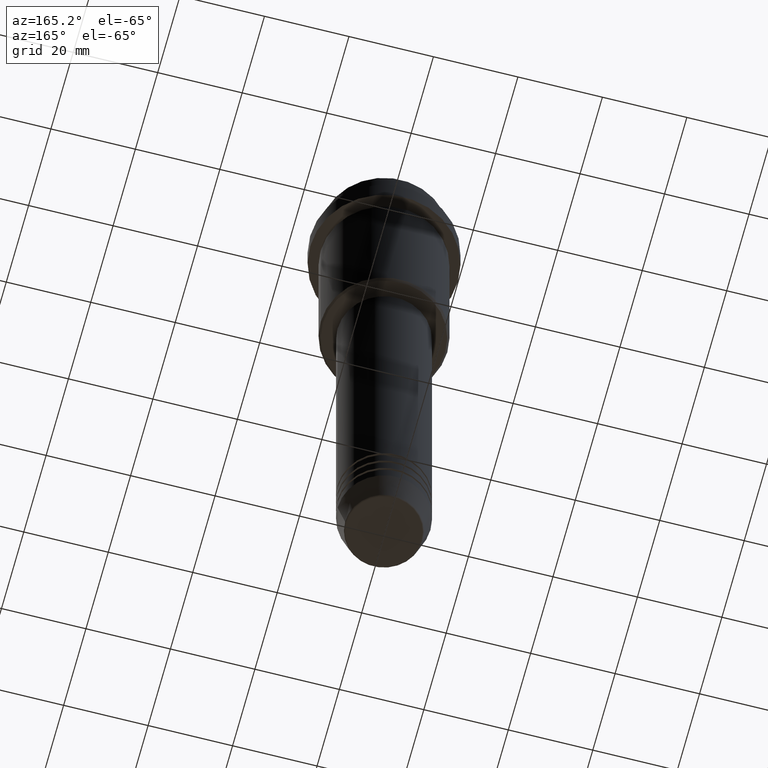
[diagram: clean part render]
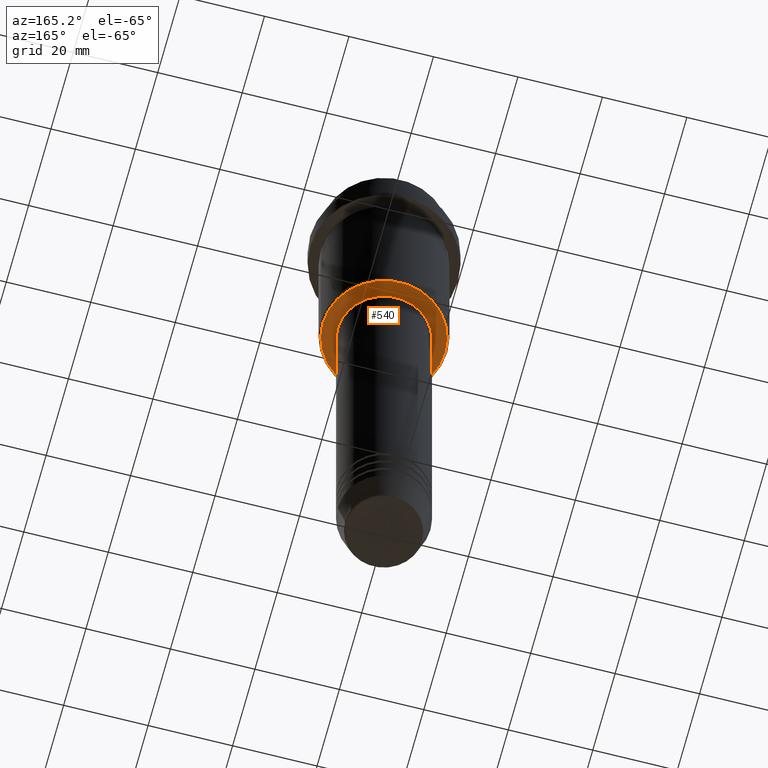
[diagram: same view with one face highlighted and labeled with its STEP entity id]
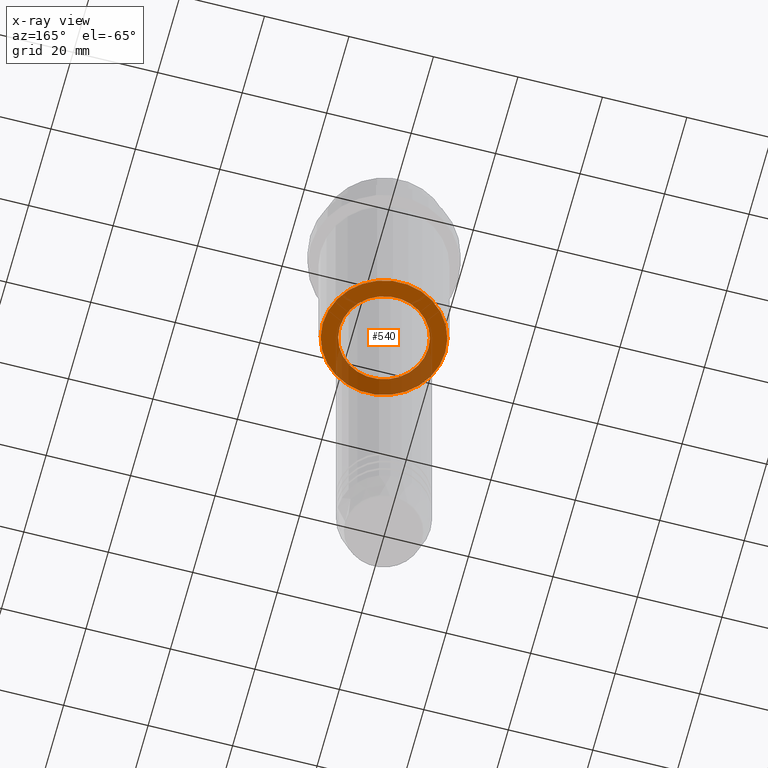
[diagram: x-ray of the same camera — body ghosted, the highlighted face saturated]
A machine part, auxiliary view. The second image highlights one B-rep face of the part: STEP entity #540.
The next image is the same camera in x-ray: the body ghosted, the highlighted face saturated — about 34% of this face is hidden behind the body in this view.
In plain terms, the highlighted planar face has unit normal (0, 0, -1).
Its self-contained STEP definition (entity closure, byte-faithful):
#69 = DIRECTION ( 'NONE',  ( 1.000000000000000000, 0.000000000000000000, 0.000000000000000000 ) ) ;
#75 = ORIENTED_EDGE ( 'NONE', *, *, #1101, .T. ) ;
#109 = CARTESIAN_POINT ( 'NONE',  ( 0.000000000000000000, 0.000000000000000000, -54.99999999999999289 ) ) ;
#170 = VERTEX_POINT ( 'NONE', #195 ) ;
#186 = VERTEX_POINT ( 'NONE', #826 ) ;
#195 = CARTESIAN_POINT ( 'NONE',  ( 14.49999999999994138, 0.000000000000000000, -54.99999999999999289 ) ) ;
#203 = EDGE_CURVE ( 'NONE', #186, #1248, #1059, .T. ) ;
#216 = CIRCLE ( 'NONE', #715, 10.49999999999999289 ) ;
#339 = ORIENTED_EDGE ( 'NONE', *, *, #1187, .T. ) ;
#401 = FACE_OUTER_BOUND ( 'NONE', #1325, .T. ) ;
#434 = DIRECTION ( 'NONE',  ( 1.000000000000000000, 0.000000000000000000, 0.000000000000000000 ) ) ;
#461 = AXIS2_PLACEMENT_3D ( 'NONE', #591, #720, #925 ) ;
#467 = ORIENTED_EDGE ( 'NONE', *, *, #1121, .T. ) ;
#493 = CARTESIAN_POINT ( 'NONE',  ( -14.49999999999994138, 1.806354028742342252E-15, -54.99999999999999289 ) ) ;
#510 = VERTEX_POINT ( 'NONE', #493 ) ;
#540 = ADVANCED_FACE ( 'NONE', ( #401, #818 ), #1257, .T. ) ;
#591 = CARTESIAN_POINT ( 'NONE',  ( 0.000000000000000000, 15.00000000000000000, -54.99999999999999289 ) ) ;
#623 = CARTESIAN_POINT ( 'NONE',  ( 0.000000000000000000, 0.000000000000000000, -54.99999999999999289 ) ) ;
#639 = AXIS2_PLACEMENT_3D ( 'NONE', #1041, #1274, #69 ) ;
#715 = AXIS2_PLACEMENT_3D ( 'NONE', #109, #962, #434 ) ;
#720 = DIRECTION ( 'NONE',  ( 0.000000000000000000, 0.000000000000000000, -1.000000000000000000 ) ) ;
#748 = DIRECTION ( 'NONE',  ( -1.000000000000000000, 0.000000000000000000, 0.000000000000000000 ) ) ;
#780 = CIRCLE ( 'NONE', #970, 14.49999999999994138 ) ;
#815 = ORIENTED_EDGE ( 'NONE', *, *, #203, .T. ) ;
#818 = FACE_BOUND ( 'NONE', #1150, .T. ) ;
#826 = CARTESIAN_POINT ( 'NONE',  ( -10.49999999999999289, 1.285879139104720042E-15, -54.99999999999999289 ) ) ;
#858 = DIRECTION ( 'NONE',  ( -1.000000000000000000, 0.000000000000000000, 0.000000000000000000 ) ) ;
#925 = DIRECTION ( 'NONE',  ( -1.000000000000000000, 0.000000000000000000, -0.000000000000000000 ) ) ;
#962 = DIRECTION ( 'NONE',  ( -0.000000000000000000, -0.000000000000000000, 1.000000000000000000 ) ) ;
#970 = AXIS2_PLACEMENT_3D ( 'NONE', #623, #1072, #858 ) ;
#976 = CARTESIAN_POINT ( 'NONE',  ( 0.000000000000000000, 0.000000000000000000, -54.99999999999999289 ) ) ;
#979 = DIRECTION ( 'NONE',  ( 0.000000000000000000, 0.000000000000000000, -1.000000000000000000 ) ) ;
#1041 = CARTESIAN_POINT ( 'NONE',  ( 0.000000000000000000, 0.000000000000000000, -54.99999999999999289 ) ) ;
#1042 = AXIS2_PLACEMENT_3D ( 'NONE', #976, #979, #748 ) ;
#1059 = CIRCLE ( 'NONE', #639, 10.49999999999999289 ) ;
#1072 = DIRECTION ( 'NONE',  ( 0.000000000000000000, 0.000000000000000000, -1.000000000000000000 ) ) ;
#1101 = EDGE_CURVE ( 'NONE', #170, #510, #780, .T. ) ;
#1104 = CARTESIAN_POINT ( 'NONE',  ( 10.49999999999999289, 0.000000000000000000, -54.99999999999999289 ) ) ;
#1121 = EDGE_CURVE ( 'NONE', #1248, #186, #216, .T. ) ;
#1150 = EDGE_LOOP ( 'NONE', ( #467, #815 ) ) ;
#1187 = EDGE_CURVE ( 'NONE', #510, #170, #1200, .T. ) ;
#1200 = CIRCLE ( 'NONE', #1042, 14.49999999999994138 ) ;
#1248 = VERTEX_POINT ( 'NONE', #1104 ) ;
#1257 = PLANE ( 'NONE',  #461 ) ;
#1274 = DIRECTION ( 'NONE',  ( -0.000000000000000000, -0.000000000000000000, 1.000000000000000000 ) ) ;
#1325 = EDGE_LOOP ( 'NONE', ( #75, #339 ) ) ;